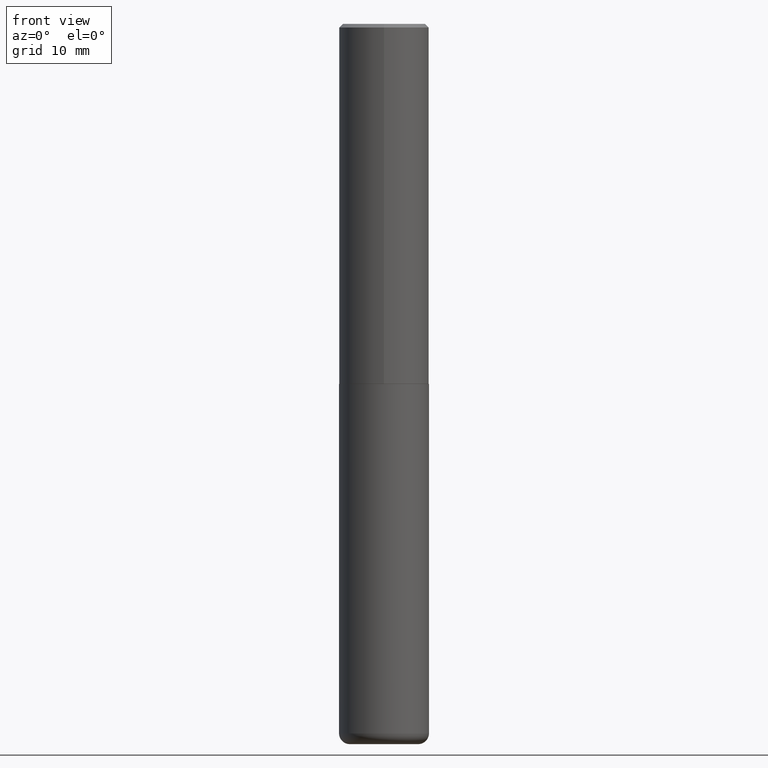
[diagram: clean part render]
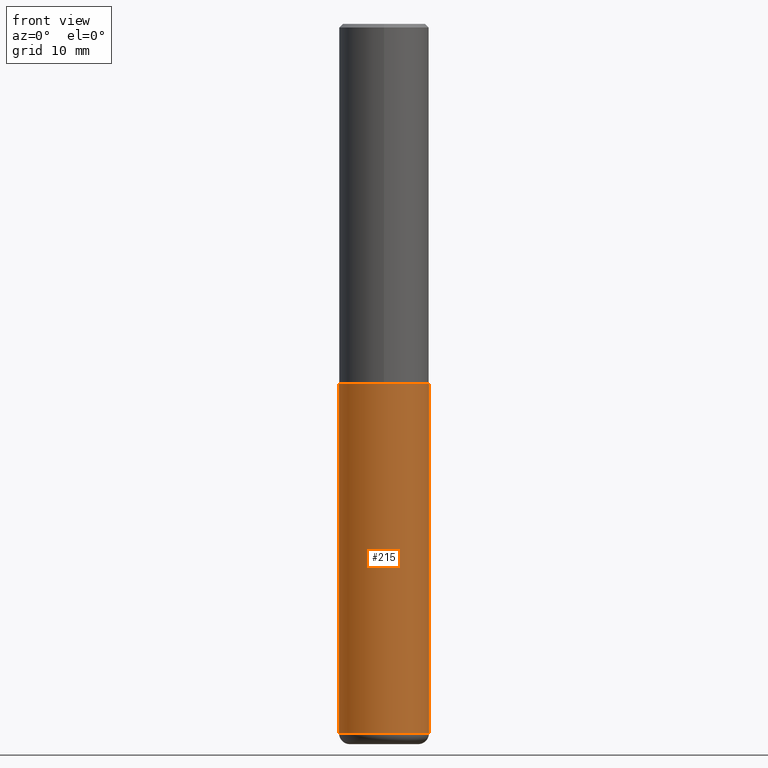
[diagram: same view with one face highlighted and labeled with its STEP entity id]
A machine part, front view. The second image highlights one B-rep face of the part: STEP entity #215.
In plain terms, the highlighted cylindrical surface (partial cylindrical patch) has radius 6.35 mm, axis along (-0, 0, 1).
Its self-contained STEP definition (entity closure, byte-faithful):
#7 = DIRECTION ( 'NONE',  ( -2.445468806185136597E-29, 3.491481338843145583E-15, 1.000000000000000000 ) ) ;
#38 = CARTESIAN_POINT ( 'NONE',  ( 0.000000000000000000, 0.000000000000000000, 0.000000000000000000 ) ) ;
#41 = CARTESIAN_POINT ( 'NONE',  ( 0.2500000000000000000, -1.745740669421566678E-15, 1.219044193948983948E-29 ) ) ;
#69 = CARTESIAN_POINT ( 'NONE',  ( -0.2500000000000000000, 1.776356839400250465E-15, -1.229733772563726445E-29 ) ) ;
#73 = DIRECTION ( 'NONE',  ( 1.000000000000000000, -6.982962677686266711E-15, 4.876176775795935793E-29 ) ) ;
#88 = CIRCLE ( 'NONE', #200, 0.2500000000000000000 ) ;
#93 = LINE ( 'NONE', #41, #222 ) ;
#97 = CARTESIAN_POINT ( 'NONE',  ( -0.2500000000000001110, -1.198007963564174355E-14, -3.939999999999999947 ) ) ;
#124 = DIRECTION ( 'NONE',  ( -2.445468806185136597E-29, 3.491481338843145583E-15, 1.000000000000000000 ) ) ;
#133 = DIRECTION ( 'NONE',  ( -2.445468806185136877E-29, 3.491481338843145188E-15, 1.000000000000000000 ) ) ;
#140 = EDGE_CURVE ( 'NONE', #250, #281, #88, .T. ) ;
#146 = ORIENTED_EDGE ( 'NONE', *, *, #140, .F. ) ;
#165 = CARTESIAN_POINT ( 'NONE',  ( 9.635147096369438236E-29, -1.375643647504199401E-14, -3.939999999999999947 ) ) ;
#168 = CIRCLE ( 'NONE', #257, 0.2500000000000000000 ) ;
#170 = DIRECTION ( 'NONE',  ( -2.445468806185136877E-29, 3.491481338843145188E-15, 1.000000000000000000 ) ) ;
#193 = DIRECTION ( 'NONE',  ( 1.000000000000000000, -6.982962677686266711E-15, 0.000000000000000000 ) ) ;
#199 = FACE_OUTER_BOUND ( 'NONE', #245, .T. ) ;
#200 = AXIS2_PLACEMENT_3D ( 'NONE', #415, #124, #193 ) ;
#202 = EDGE_CURVE ( 'NONE', #272, #281, #93, .T. ) ;
#205 = CYLINDRICAL_SURFACE ( 'NONE', #347, 0.2500000000000000000 ) ;
#207 = VERTEX_POINT ( 'NONE', #97 ) ;
#211 = EDGE_CURVE ( 'NONE', #207, #250, #389, .T. ) ;
#215 = ADVANCED_FACE ( 'NONE', ( #199 ), #205, .T. ) ;
#222 = VECTOR ( 'NONE', #133, 39.37007874015748143 ) ;
#228 = DIRECTION ( 'NONE',  ( -2.445468806185136597E-29, 3.491481338843145583E-15, 1.000000000000000000 ) ) ;
#237 = ORIENTED_EDGE ( 'NONE', *, *, #211, .F. ) ;
#245 = EDGE_LOOP ( 'NONE', ( #237, #312, #358, #146 ) ) ;
#250 = VERTEX_POINT ( 'NONE', #263 ) ;
#257 = AXIS2_PLACEMENT_3D ( 'NONE', #165, #228, #266 ) ;
#263 = CARTESIAN_POINT ( 'NONE',  ( -0.2500000000000000000, -8.593342736963892519E-15, -2.000000000000000000 ) ) ;
#266 = DIRECTION ( 'NONE',  ( 1.000000000000000000, -6.982962677686270655E-15, 0.000000000000000000 ) ) ;
#272 = VERTEX_POINT ( 'NONE', #385 ) ;
#281 = VERTEX_POINT ( 'NONE', #356 ) ;
#292 = EDGE_CURVE ( 'NONE', #207, #272, #168, .T. ) ;
#312 = ORIENTED_EDGE ( 'NONE', *, *, #292, .T. ) ;
#347 = AXIS2_PLACEMENT_3D ( 'NONE', #38, #7, #73 ) ;
#356 = CARTESIAN_POINT ( 'NONE',  ( 0.2500000000000000000, -8.728703347107857054E-15, -2.000000000000000000 ) ) ;
#358 = ORIENTED_EDGE ( 'NONE', *, *, #202, .T. ) ;
#380 = VECTOR ( 'NONE', #170, 39.37007874015748143 ) ;
#385 = CARTESIAN_POINT ( 'NONE',  ( 0.2500000000000001110, -1.550217714446356385E-14, -3.939999999999999947 ) ) ;
#389 = LINE ( 'NONE', #69, #380 ) ;
#415 = CARTESIAN_POINT ( 'NONE',  ( 4.890937612370273194E-29, -6.982962677686291165E-15, -2.000000000000000000 ) ) ;